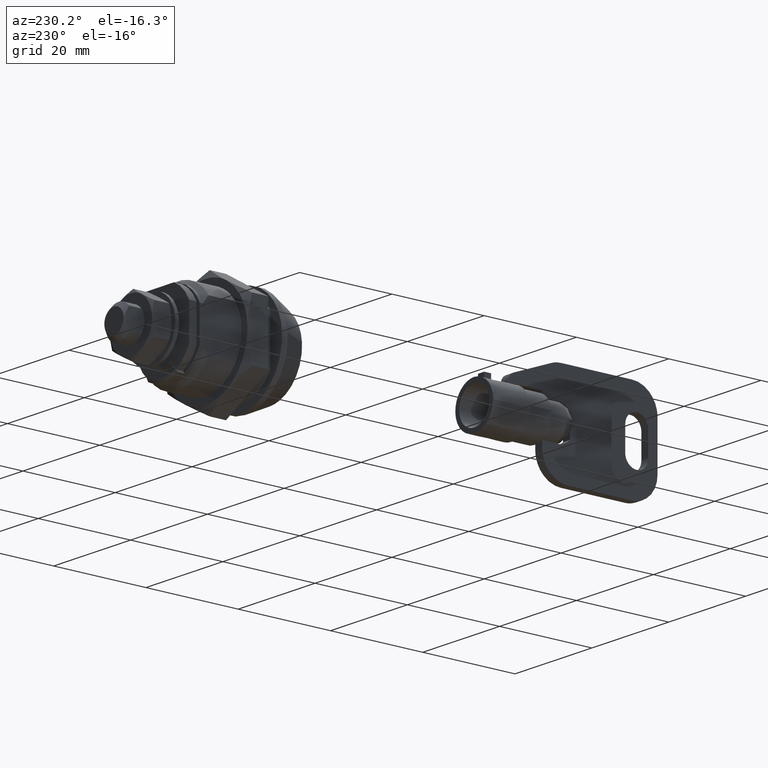
[diagram: clean part render]
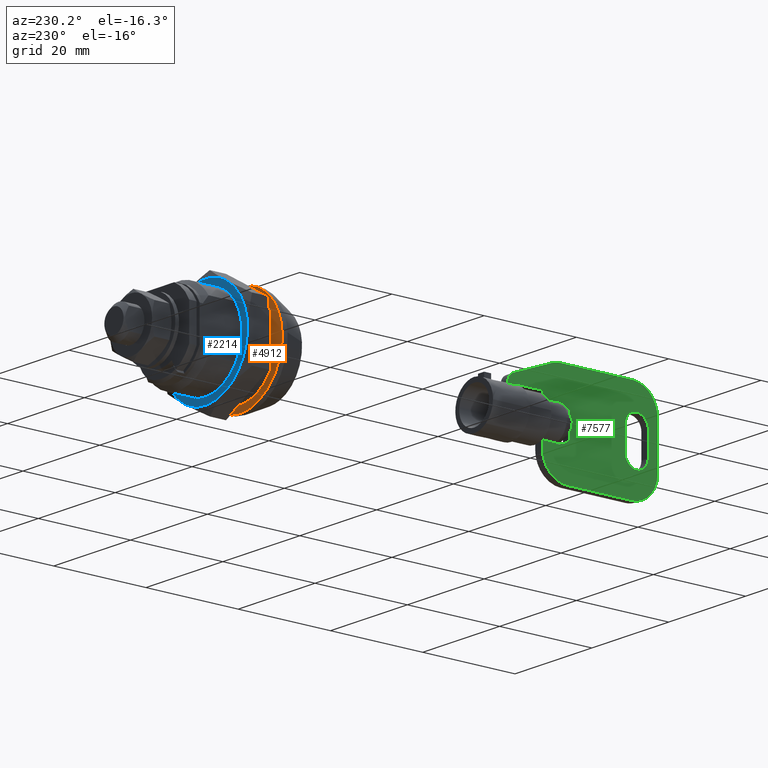
[diagram: same view with three faces highlighted in distinct colors, each labeled with its STEP entity id]
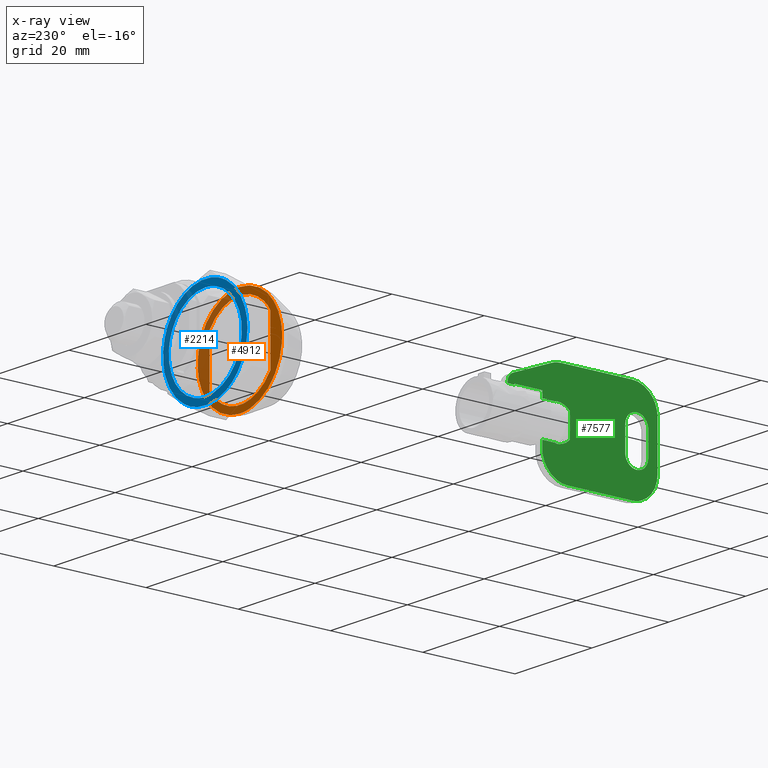
[diagram: x-ray of the same camera — body ghosted, the three highlighted faces saturated]
A machine part, auxiliary view with three faces highlighted in distinct colors.
The next image is the same camera in x-ray (body ghosted, the three faces saturated) — at least one of them is partly hidden behind the body in this view.
Their STEP definitions:

[orange] entity #4912 — the highlighted face is a freeform B-spline surface patch.
#2964=CARTESIAN_POINT('',(6.300003000000000,10.928161072150560,-1.255107796618596));
#2965=VERTEX_POINT('',#2964);
#2971=CARTESIAN_POINT('',(6.300003000000000,0.0,-11.0));
#2972=VERTEX_POINT('',#2971);
#2973=CARTESIAN_POINT('',(6.300002999999999,10.928161072150568,-1.255107796618596));
#2974=CARTESIAN_POINT('',(6.300003000000002,9.808952187476523,-11.0));
#2975=CARTESIAN_POINT('',(6.300003000000000,0.0,-11.0));
#2983=(BOUNDED_CURVE()B_SPLINE_CURVE(2,(#2973,#2974,#2975),.UNSPECIFIED.,.F.,.U.)B_SPLINE_CURVE_WITH_KNOTS((3,3),(0.269767770881984,0.500000000000000),.UNSPECIFIED.)CURVE()GEOMETRIC_REPRESENTATION_ITEM()RATIONAL_B_SPLINE_CURVE((0.957343706861125,0.730266165356112,1.0))REPRESENTATION_ITEM(''));
#2984=EDGE_CURVE('',#2965,#2972,#2983,.T.);
#2986=CARTESIAN_POINT('',(6.300003000000000,-10.979482782557540,-0.671533936240440));
#2987=VERTEX_POINT('',#2986);
#2988=CARTESIAN_POINT('',(6.300003000000000,0.0,-11.0));
#2989=CARTESIAN_POINT('',(6.300003000000001,-10.347766733400018,-11.0));
#2990=CARTESIAN_POINT('',(6.300003000000000,-10.979482782557534,-0.671533936240440));
#2998=(BOUNDED_CURVE()B_SPLINE_CURVE(2,(#2988,#2989,#2990),.UNSPECIFIED.,.F.,.U.)B_SPLINE_CURVE_WITH_KNOTS((3,3),(0.500000000000000,0.739332962199317),.UNSPECIFIED.)CURVE()GEOMETRIC_REPRESENTATION_ITEM()RATIONAL_B_SPLINE_CURVE((1.0,0.719603993333135,0.976072041581791))REPRESENTATION_ITEM(''));
#2999=EDGE_CURVE('',#2972,#2987,#2998,.T.);
#3094=CARTESIAN_POINT('',(6.300003000000000,0.0,11.0));
#3095=VERTEX_POINT('',#3094);
#3096=CARTESIAN_POINT('',(6.300003000000000,-10.979482782557534,-0.671533936240440));
#3097=CARTESIAN_POINT('',(6.300003000000000,-10.999999999999998,-0.336080397645296));
#3098=CARTESIAN_POINT('',(6.300003000000000,-11.0,0.0));
#3099=CARTESIAN_POINT('',(6.300003000000001,-11.0,11.0));
#3100=CARTESIAN_POINT('',(6.300003000000000,0.0,11.0));
#3108=(BOUNDED_CURVE()B_SPLINE_CURVE(2,(#3096,#3097,#3098,#3099,#3100),.UNSPECIFIED.,.F.,.U.)B_SPLINE_CURVE_WITH_KNOTS((3,2,3),(0.739332962199316,0.750000000000000,1.0),.UNSPECIFIED.)CURVE()GEOMETRIC_REPRESENTATION_ITEM()RATIONAL_B_SPLINE_CURVE((0.976072041581791,0.987502787853412,1.0,0.707106781186548,1.0))REPRESENTATION_ITEM(''));
#3109=EDGE_CURVE('',#2987,#3095,#3108,.T.);
#3111=CARTESIAN_POINT('',(6.300003000000000,0.0,11.0));
#3112=CARTESIAN_POINT('',(6.300003000000001,11.0,11.0));
#3113=CARTESIAN_POINT('',(6.300003000000000,11.0,0.0));
#3114=CARTESIAN_POINT('',(6.300003000000000,11.000000000000002,-0.629610074535282));
#3115=CARTESIAN_POINT('',(6.300003000000000,10.928161072150568,-1.255107796618596));
#3123=(BOUNDED_CURVE()B_SPLINE_CURVE(2,(#3111,#3112,#3113,#3114,#3115),.UNSPECIFIED.,.F.,.U.)B_SPLINE_CURVE_WITH_KNOTS((3,2,3),(0.0,0.250000000000000,0.269767770881984),.UNSPECIFIED.)CURVE()GEOMETRIC_REPRESENTATION_ITEM()RATIONAL_B_SPLINE_CURVE((1.0,0.707106781186548,1.0,0.976840615830435,0.957343706861125))REPRESENTATION_ITEM(''));
#3124=EDGE_CURVE('',#3095,#2965,#3123,.T.);
#4099=CARTESIAN_POINT('',(6.300003000000000,-7.900010284478889,5.276348785394170));
#4100=VERTEX_POINT('',#4099);
#4106=CARTESIAN_POINT('',(6.300003000000000,-7.900009452898900,-5.276348229989000));
#4107=VERTEX_POINT('',#4106);
#4108=CARTESIAN_POINT('',(6.300003000000000,-7.900009452898900,-5.276348229989000));
#4109=CARTESIAN_POINT('',(6.300003000000000,-7.900010284478889,5.276348785394170));
#4110=QUASI_UNIFORM_CURVE('',1,(#4108,#4109),.UNSPECIFIED.,.F.,.U.);
#4111=EDGE_CURVE('',#4107,#4100,#4110,.T.);
#4175=CARTESIAN_POINT('',(6.300003000000000,7.899994258074021,-5.276370980361171));
#4176=VERTEX_POINT('',#4175);
#4182=CARTESIAN_POINT('',(6.300003000000000,7.899994258074040,5.276370980361140));
#4183=VERTEX_POINT('',#4182);
#4184=CARTESIAN_POINT('',(6.300003000000000,7.899994258074040,5.276370980361140));
#4185=CARTESIAN_POINT('',(6.300003000000000,7.899994258074021,-5.276370980361171));
#4186=QUASI_UNIFORM_CURVE('',1,(#4184,#4185),.UNSPECIFIED.,.F.,.U.);
#4187=EDGE_CURVE('',#4183,#4176,#4186,.T.);
#4867=CARTESIAN_POINT('',(6.300003000000000,-12.098640500122739,12.098899957359730));
#4868=CARTESIAN_POINT('',(6.300003000000000,-12.098640500122739,-12.098900547445711));
#4869=CARTESIAN_POINT('',(6.300003000000000,12.098865126187039,12.098899957359730));
#4870=CARTESIAN_POINT('',(6.300003000000000,12.098865126187039,-12.098900547445711));
#4871=B_SPLINE_SURFACE_WITH_KNOTS('',1,1,((#4867,#4869),(#4868,#4870)),.UNSPECIFIED.,.F.,.F.,.U.,(2,2),(2,2),(0.0,24.197800504805439),(0.0,24.197505626309770),.UNSPECIFIED.);
#4872=ORIENTED_EDGE('',*,*,#3109,.F.);
#4873=ORIENTED_EDGE('',*,*,#2999,.F.);
#4874=ORIENTED_EDGE('',*,*,#2984,.F.);
#4875=ORIENTED_EDGE('',*,*,#3124,.F.);
#4876=EDGE_LOOP('',(#4872,#4873,#4874,#4875));
#4877=FACE_OUTER_BOUND('',#4876,.T.);
#4878=CARTESIAN_POINT('',(6.300003000000000,-7.900010284478889,5.276348785394170));
#4879=CARTESIAN_POINT('',(6.300003000000000,-5.079074403466395,9.499993587505214));
#4880=CARTESIAN_POINT('',(6.300003000000000,-0.000014094808638,9.500000722286440));
#4881=CARTESIAN_POINT('',(6.300003000000000,5.079046213849120,9.500007857067667));
#4882=CARTESIAN_POINT('',(6.300003000000000,7.899994258074040,5.276370980361140));
#4890=(BOUNDED_CURVE()B_SPLINE_CURVE(2,(#4878,#4879,#4880,#4881,#4882),.UNSPECIFIED.,.F.,.U.)B_SPLINE_CURVE_WITH_KNOTS((3,2,3),(0.0,0.500000000000000,1.0),.UNSPECIFIED.)CURVE()GEOMETRIC_REPRESENTATION_ITEM()RATIONAL_B_SPLINE_CURVE((1.0,0.881874785394597,1.0,0.881874785394597,1.0))REPRESENTATION_ITEM(''));
#4891=EDGE_CURVE('',#4100,#4183,#4890,.T.);
#4892=ORIENTED_EDGE('',*,*,#4891,.T.);
#4893=ORIENTED_EDGE('',*,*,#4187,.T.);
#4894=CARTESIAN_POINT('',(6.300003000000000,7.899994258074021,-5.276370980361171));
#4895=CARTESIAN_POINT('',(6.300003000000000,5.079046362319865,-9.500007757905339));
#4896=CARTESIAN_POINT('',(6.300003000000000,-0.000013679018671,-9.500000444583877));
#4897=CARTESIAN_POINT('',(6.300003000000000,-5.079073720357203,-9.499993131262418));
#4898=CARTESIAN_POINT('',(6.300003000000000,-7.900009452898900,-5.276348229989000));
#4906=(BOUNDED_CURVE()B_SPLINE_CURVE(2,(#4894,#4895,#4896,#4897,#4898),.UNSPECIFIED.,.F.,.U.)B_SPLINE_CURVE_WITH_KNOTS((3,2,3),(0.0,0.500000000000000,1.0),.UNSPECIFIED.)CURVE()GEOMETRIC_REPRESENTATION_ITEM()RATIONAL_B_SPLINE_CURVE((1.0,0.881874785394597,1.0,0.881874785394597,1.0))REPRESENTATION_ITEM(''));
#4907=EDGE_CURVE('',#4176,#4107,#4906,.T.);
#4908=ORIENTED_EDGE('',*,*,#4907,.T.);
#4909=ORIENTED_EDGE('',*,*,#4111,.T.);
#4910=EDGE_LOOP('',(#4892,#4893,#4908,#4909));
#4911=FACE_BOUND('',#4910,.T.);
#4912=ADVANCED_FACE('',(#4877,#4911),#4871,.T.);

[blue] entity #2214 — the highlighted face is a freeform B-spline surface patch.
#1607=CARTESIAN_POINT('',(15.800003000000050,9.470714670457465,-0.745361409506649));
#1608=VERTEX_POINT('',#1607);
#1614=CARTESIAN_POINT('',(15.800003000000050,0.0,9.500000000000000));
#1615=VERTEX_POINT('',#1614);
#1616=CARTESIAN_POINT('',(15.800003000000050,9.470714670457465,-0.745361409506649));
#1617=CARTESIAN_POINT('',(15.800003000000052,9.500000000000000,-0.373256016665408));
#1618=CARTESIAN_POINT('',(15.800003000000050,9.500000000000000,0.0));
#1619=CARTESIAN_POINT('',(15.800003000000050,9.500000000000000,9.500000000000000));
#1620=CARTESIAN_POINT('',(15.800003000000050,0.0,9.500000000000000));
#1628=(BOUNDED_CURVE()B_SPLINE_CURVE(2,(#1616,#1617,#1618,#1619,#1620),.UNSPECIFIED.,.F.,.U.)B_SPLINE_CURVE_WITH_KNOTS((3,2,3),(0.736331300629432,0.750000000000000,1.0),.UNSPECIFIED.)CURVE()GEOMETRIC_REPRESENTATION_ITEM()RATIONAL_B_SPLINE_CURVE((0.969723356164856,0.983986122577444,1.0,0.707106781186548,1.0))REPRESENTATION_ITEM(''));
#1629=EDGE_CURVE('',#1608,#1615,#1628,.T.);
#1631=CARTESIAN_POINT('',(15.800003000000050,-9.470714670457465,0.745361409506646));
#1632=VERTEX_POINT('',#1631);
#1633=CARTESIAN_POINT('',(15.800003000000050,0.0,9.500000000000000));
#1634=CARTESIAN_POINT('',(15.800003000000050,-8.781709670581606,9.500000000000000));
#1635=CARTESIAN_POINT('',(15.800003000000048,-9.470714670457465,0.745361409506646));
#1643=(BOUNDED_CURVE()B_SPLINE_CURVE(2,(#1633,#1634,#1635),.UNSPECIFIED.,.F.,.U.)B_SPLINE_CURVE_WITH_KNOTS((3,3),(0.0,0.236331300629432),.UNSPECIFIED.)CURVE()GEOMETRIC_REPRESENTATION_ITEM()RATIONAL_B_SPLINE_CURVE((1.0,0.723120658609104,0.969723356164856))REPRESENTATION_ITEM(''));
#1644=EDGE_CURVE('',#1615,#1632,#1643,.T.);
#1690=CARTESIAN_POINT('',(15.800003000000050,0.0,-9.500000000000000));
#1691=VERTEX_POINT('',#1690);
#1692=CARTESIAN_POINT('',(15.800003000000046,-9.470714670457465,0.745361409506646));
#1693=CARTESIAN_POINT('',(15.800003000000050,-9.500000000000000,0.373256016665406));
#1694=CARTESIAN_POINT('',(15.800003000000050,-9.500000000000000,0.0));
#1695=CARTESIAN_POINT('',(15.800003000000050,-9.500000000000000,-9.500000000000000));
#1696=CARTESIAN_POINT('',(15.800003000000050,0.0,-9.500000000000000));
#1704=(BOUNDED_CURVE()B_SPLINE_CURVE(2,(#1692,#1693,#1694,#1695,#1696),.UNSPECIFIED.,.F.,.U.)B_SPLINE_CURVE_WITH_KNOTS((3,2,3),(0.236331300629432,0.250000000000000,0.500000000000000),.UNSPECIFIED.)CURVE()GEOMETRIC_REPRESENTATION_ITEM()RATIONAL_B_SPLINE_CURVE((0.969723356164856,0.983986122577444,1.0,0.707106781186548,1.0))REPRESENTATION_ITEM(''));
#1705=EDGE_CURVE('',#1632,#1691,#1704,.T.);
#1707=CARTESIAN_POINT('',(15.800003000000050,0.0,-9.500000000000000));
#1708=CARTESIAN_POINT('',(15.800003000000050,8.781709670581661,-9.500000000000000));
#1709=CARTESIAN_POINT('',(15.800003000000050,9.470714670457465,-0.745361409506649));
#1717=(BOUNDED_CURVE()B_SPLINE_CURVE(2,(#1707,#1708,#1709),.UNSPECIFIED.,.F.,.U.)B_SPLINE_CURVE_WITH_KNOTS((3,3),(0.500000000000000,0.736331300629433),.UNSPECIFIED.)CURVE()GEOMETRIC_REPRESENTATION_ITEM()RATIONAL_B_SPLINE_CURVE((1.0,0.723120658609102,0.969723356164858))REPRESENTATION_ITEM(''));
#1718=EDGE_CURVE('',#1691,#1608,#1717,.T.);
#1751=CARTESIAN_POINT('',(15.800003000000100,5.499994829120610,9.526282427035561));
#1752=VERTEX_POINT('',#1751);
#1768=CARTESIAN_POINT('',(15.800003000000100,11.0,0.0));
#1769=VERTEX_POINT('',#1768);
#1770=CARTESIAN_POINT('',(15.800003000000100,5.499994829120610,9.526282427035561));
#1771=CARTESIAN_POINT('',(15.800003000000098,11.0,6.350856941630693));
#1772=CARTESIAN_POINT('',(15.800003000000100,11.0,0.0));
#1780=(BOUNDED_CURVE()B_SPLINE_CURVE(2,(#1770,#1771,#1772),.UNSPECIFIED.,.F.,.U.)CURVE()GEOMETRIC_REPRESENTATION_ITEM()QUASI_UNIFORM_CURVE()RATIONAL_B_SPLINE_CURVE((1.0,0.866025268084037,1.0))REPRESENTATION_ITEM(''));
#1781=EDGE_CURVE('',#1752,#1769,#1780,.T.);
#1833=CARTESIAN_POINT('',(15.800003000000100,5.513151729109220,-9.518674173004349));
#1834=VERTEX_POINT('',#1833);
#1835=CARTESIAN_POINT('',(15.800003000000100,11.0,0.0));
#1836=CARTESIAN_POINT('',(15.800003000000107,10.999999999999998,-6.340728748859865));
#1837=CARTESIAN_POINT('',(15.800003000000100,5.513151729109217,-9.518674173004348));
#1845=(BOUNDED_CURVE()B_SPLINE_CURVE(2,(#1835,#1836,#1837),.UNSPECIFIED.,.F.,.U.)CURVE()GEOMETRIC_REPRESENTATION_ITEM()QUASI_UNIFORM_CURVE()RATIONAL_B_SPLINE_CURVE((1.0,0.866370478414749,1.0))REPRESENTATION_ITEM(''));
#1846=EDGE_CURVE('',#1769,#1834,#1845,.T.);
#1876=CARTESIAN_POINT('',(15.800003000000100,5.486851247642080,-9.533858787828180));
#1877=VERTEX_POINT('',#1876);
#1878=CARTESIAN_POINT('',(15.800003000000100,-5.500000050550921,-9.526279470814409));
#1879=VERTEX_POINT('',#1878);
#1880=CARTESIAN_POINT('',(15.800003000000100,5.486851247642076,-9.533858787828176));
#1881=CARTESIAN_POINT('',(15.800003000000101,-0.008758877429218,-12.696649001356283));
#1882=CARTESIAN_POINT('',(15.800003000000100,-5.500000050550921,-9.526279470814409));
#1890=(BOUNDED_CURVE()B_SPLINE_CURVE(2,(#1880,#1881,#1882),.UNSPECIFIED.,.F.,.U.)CURVE()GEOMETRIC_REPRESENTATION_ITEM()QUASI_UNIFORM_CURVE()RATIONAL_B_SPLINE_CURVE((1.0,0.866370125011569,1.0))REPRESENTATION_ITEM(''));
#1891=EDGE_CURVE('',#1877,#1879,#1890,.T.);
#1942=CARTESIAN_POINT('',(15.800003000000100,-5.500000050550921,-9.526279470814409));
#1943=CARTESIAN_POINT('',(15.800003000000096,-15.026276854234830,-4.026280901760840));
#1944=CARTESIAN_POINT('',(15.800003000000100,-9.526280927036149,5.499997427198243));
#1945=CARTESIAN_POINT('',(15.800003000000096,-4.026284999837469,15.026275756157318));
#1946=CARTESIAN_POINT('',(15.800003000000100,5.499994829120609,9.526282427035563));
#1954=(BOUNDED_CURVE()B_SPLINE_CURVE(2,(#1942,#1943,#1944,#1945,#1946),.UNSPECIFIED.,.F.,.U.)B_SPLINE_CURVE_WITH_KNOTS((3,2,3),(0.0,0.500000000000000,1.0),.UNSPECIFIED.)CURVE()GEOMETRIC_REPRESENTATION_ITEM()RATIONAL_B_SPLINE_CURVE((1.0,0.707106877610223,1.0,0.707106877610223,1.0))REPRESENTATION_ITEM(''));
#1955=EDGE_CURVE('',#1879,#1752,#1954,.T.);
#2094=CARTESIAN_POINT('',(15.800003000000100,5.513151729109220,-9.518674173004349));
#2095=CARTESIAN_POINT('',(15.800003000000100,5.486851247642080,-9.533858787828180));
#2096=QUASI_UNIFORM_CURVE('',1,(#2094,#2095),.UNSPECIFIED.,.F.,.U.);
#2097=EDGE_CURVE('',#1834,#1877,#2096,.T.);
#2196=CARTESIAN_POINT('',(15.800003000000100,-12.098899984276450,12.098899995825670));
#2197=CARTESIAN_POINT('',(15.800003000000100,12.098900548349670,12.098899995825670));
#2198=CARTESIAN_POINT('',(15.800003000000100,-12.098899984276450,-12.098897818757219));
#2199=CARTESIAN_POINT('',(15.800003000000100,12.098900548349670,-12.098897818757219));
#2200=B_SPLINE_SURFACE_WITH_KNOTS('',1,1,((#2196,#2198),(#2197,#2199)),.UNSPECIFIED.,.F.,.F.,.U.,(2,2),(2,2),(0.0,24.197800532626118),(0.0,24.197797814582891),.UNSPECIFIED.);
#2201=ORIENTED_EDGE('',*,*,#1781,.F.);
#2202=ORIENTED_EDGE('',*,*,#1955,.F.);
#2203=ORIENTED_EDGE('',*,*,#1891,.F.);
#2204=ORIENTED_EDGE('',*,*,#2097,.F.);
#2205=ORIENTED_EDGE('',*,*,#1846,.F.);
#2206=EDGE_LOOP('',(#2201,#2202,#2203,#2204,#2205));
#2207=FACE_OUTER_BOUND('',#2206,.T.);
#2208=ORIENTED_EDGE('',*,*,#1718,.F.);
#2209=ORIENTED_EDGE('',*,*,#1705,.F.);
#2210=ORIENTED_EDGE('',*,*,#1644,.F.);
#2211=ORIENTED_EDGE('',*,*,#1629,.F.);
#2212=EDGE_LOOP('',(#2208,#2209,#2210,#2211));
#2213=FACE_BOUND('',#2212,.T.);
#2214=ADVANCED_FACE('',(#2207,#2213),#2200,.F.);

[green] entity #7577 — the highlighted face is a freeform B-spline surface patch.
#5805=CARTESIAN_POINT('',(-58.490193000000012,0.900000000000000,-3.588871688985175));
#5806=VERTEX_POINT('',#5805);
#5820=CARTESIAN_POINT('',(-61.487812432673103,0.900000000000000,-3.588871688985175));
#5821=VERTEX_POINT('',#5820);
#5822=CARTESIAN_POINT('',(-61.487812432673103,0.900000000000000,-3.588871688985175));
#5823=CARTESIAN_POINT('',(-58.490193000000012,0.900000000000000,-3.588871688985175));
#5824=QUASI_UNIFORM_CURVE('',1,(#5822,#5823),.UNSPECIFIED.,.F.,.U.);
#5825=EDGE_CURVE('',#5821,#5806,#5824,.T.);
#5844=CARTESIAN_POINT('',(-61.487812432673103,0.900000000000000,3.588871688985175));
#5845=VERTEX_POINT('',#5844);
#5859=CARTESIAN_POINT('',(-58.490193000000012,0.900000000000000,3.588871688985175));
#5860=VERTEX_POINT('',#5859);
#5861=CARTESIAN_POINT('',(-58.490193000000012,0.900000000000000,3.588871688985175));
#5862=CARTESIAN_POINT('',(-61.487812432673103,0.900000000000000,3.588871688985175));
#5863=QUASI_UNIFORM_CURVE('',1,(#5861,#5862),.UNSPECIFIED.,.F.,.U.);
#5864=EDGE_CURVE('',#5860,#5845,#5863,.T.);
#6026=CARTESIAN_POINT('',(-52.490192999999998,0.900000000000000,4.816637831516920));
#6027=VERTEX_POINT('',#6026);
#6041=CARTESIAN_POINT('',(-50.990193000000012,0.900000000000000,4.816637831516920));
#6042=VERTEX_POINT('',#6041);
#6043=CARTESIAN_POINT('',(-50.990193000000012,0.900000000000000,4.816637831516920));
#6044=CARTESIAN_POINT('',(-52.490192999999998,0.900000000000000,4.816637831516920));
#6045=QUASI_UNIFORM_CURVE('',1,(#6043,#6044),.UNSPECIFIED.,.F.,.U.);
#6046=EDGE_CURVE('',#6042,#6027,#6045,.T.);
#6282=CARTESIAN_POINT('',(-61.490199608887401,0.900000000000000,-3.588702282998970));
#6283=VERTEX_POINT('',#6282);
#6284=CARTESIAN_POINT('',(-61.490199608887423,0.900000000000000,-3.588702282999030));
#6285=CARTESIAN_POINT('',(-61.489403980217247,0.900000000000000,-3.588759073560181));
#6286=CARTESIAN_POINT('',(-61.488608254140821,0.900000000000000,-3.588815540332797));
#6287=CARTESIAN_POINT('',(-61.487812432673103,0.900000000000000,-3.588871688985175));
#6288=B_SPLINE_CURVE_WITH_KNOTS('',3,(#6284,#6285,#6286,#6287),.UNSPECIFIED.,.F.,.U.,(4,4),(0.0,0.000217530826527),.UNSPECIFIED.);
#6289=EDGE_CURVE('',#6283,#5821,#6288,.T.);
#6430=CARTESIAN_POINT('',(-61.490192999999998,0.900000000000000,3.588702754722065));
#6431=VERTEX_POINT('',#6430);
#6445=CARTESIAN_POINT('',(-61.487812432673103,0.900000000000000,3.588871688985175));
#6446=CARTESIAN_POINT('',(-61.488605935360418,0.900000000000000,3.588815710378918));
#6447=CARTESIAN_POINT('',(-61.489399457491018,0.900000000000000,3.588759394561059));
#6448=CARTESIAN_POINT('',(-61.490192999999998,0.900000000000000,3.588702754722082));
#6449=B_SPLINE_CURVE_WITH_KNOTS('',3,(#6445,#6446,#6447,#6448),.UNSPECIFIED.,.F.,.U.,(4,4),(0.999783444907066,1.0),.UNSPECIFIED.);
#6450=EDGE_CURVE('',#5845,#6431,#6449,.T.);
#6594=CARTESIAN_POINT('',(-76.490193000000005,0.900000000000012,-2.500000000000000));
#6595=VERTEX_POINT('',#6594);
#6601=CARTESIAN_POINT('',(-81.490193000000005,0.900000000000012,-2.500000000000000));
#6602=VERTEX_POINT('',#6601);
#6603=CARTESIAN_POINT('',(-81.490193000000005,0.900000000000012,-2.500000000000000));
#6604=CARTESIAN_POINT('',(-81.490193000000005,0.900000000000012,-5.000000000000001));
#6605=CARTESIAN_POINT('',(-78.990193000000005,0.900000000000012,-5.0));
#6606=CARTESIAN_POINT('',(-76.490192999999991,0.900000000000012,-5.000000000000001));
#6607=CARTESIAN_POINT('',(-76.490193000000005,0.900000000000012,-2.500000000000000));
#6615=(BOUNDED_CURVE()B_SPLINE_CURVE(2,(#6603,#6604,#6605,#6606,#6607),.UNSPECIFIED.,.F.,.U.)B_SPLINE_CURVE_WITH_KNOTS((3,2,3),(0.0,0.500000000000000,1.0),.UNSPECIFIED.)CURVE()GEOMETRIC_REPRESENTATION_ITEM()RATIONAL_B_SPLINE_CURVE((1.0,0.707106781186548,1.0,0.707106781186548,1.0))REPRESENTATION_ITEM(''));
#6616=EDGE_CURVE('',#6602,#6595,#6615,.T.);
#6638=CARTESIAN_POINT('',(-76.490193000000005,0.900000000000012,2.500000000000000));
#6639=VERTEX_POINT('',#6638);
#6645=CARTESIAN_POINT('',(-76.490193000000005,0.900000000000012,2.500000000000000));
#6646=CARTESIAN_POINT('',(-76.490193000000005,0.900000000000012,-2.500000000000000));
#6647=QUASI_UNIFORM_CURVE('',1,(#6645,#6646),.UNSPECIFIED.,.F.,.U.);
#6648=EDGE_CURVE('',#6639,#6595,#6647,.T.);
#6689=CARTESIAN_POINT('',(-81.490193000000005,0.900000000000012,2.500000000000000));
#6690=VERTEX_POINT('',#6689);
#6696=CARTESIAN_POINT('',(-76.490193000000005,0.900000000000012,2.500000000000000));
#6697=CARTESIAN_POINT('',(-76.490192999999991,0.900000000000012,5.000000000000001));
#6698=CARTESIAN_POINT('',(-78.990193000000005,0.900000000000012,5.0));
#6699=CARTESIAN_POINT('',(-81.490193000000005,0.900000000000012,5.000000000000001));
#6700=CARTESIAN_POINT('',(-81.490193000000005,0.900000000000012,2.500000000000000));
#6708=(BOUNDED_CURVE()B_SPLINE_CURVE(2,(#6696,#6697,#6698,#6699,#6700),.UNSPECIFIED.,.F.,.U.)B_SPLINE_CURVE_WITH_KNOTS((3,2,3),(0.0,0.500000000000000,1.0),.UNSPECIFIED.)CURVE()GEOMETRIC_REPRESENTATION_ITEM()RATIONAL_B_SPLINE_CURVE((1.0,0.707106781186548,1.0,0.707106781186548,1.0))REPRESENTATION_ITEM(''));
#6709=EDGE_CURVE('',#6639,#6690,#6708,.T.);
#6726=CARTESIAN_POINT('',(-81.490193000000005,0.900000000000012,-2.500000000000000));
#6727=CARTESIAN_POINT('',(-81.490193000000005,0.900000000000012,2.500000000000000));
#6728=QUASI_UNIFORM_CURVE('',1,(#6726,#6727),.UNSPECIFIED.,.F.,.U.);
#6729=EDGE_CURVE('',#6602,#6690,#6728,.T.);
#6749=CARTESIAN_POINT('',(-62.526610622687897,0.900000000000000,10.500000000000000));
#6750=VERTEX_POINT('',#6749);
#6751=CARTESIAN_POINT('',(-60.526312026143103,0.900000000000000,10.123358812796660));
#6752=VERTEX_POINT('',#6751);
#6753=CARTESIAN_POINT('',(-62.526610622687897,0.900000000000012,10.500000000000000));
#6754=CARTESIAN_POINT('',(-61.491001972461007,0.900000000000012,10.500000000000000));
#6755=CARTESIAN_POINT('',(-60.526312026143117,0.900000000000012,10.123358812796640));
#6763=(BOUNDED_CURVE()B_SPLINE_CURVE(2,(#6753,#6754,#6755),.UNSPECIFIED.,.F.,.U.)CURVE()GEOMETRIC_REPRESENTATION_ITEM()QUASI_UNIFORM_CURVE()RATIONAL_B_SPLINE_CURVE((1.0,0.982730833988851,1.0))REPRESENTATION_ITEM(''));
#6764=EDGE_CURVE('',#6750,#6752,#6763,.T.);
#6810=CARTESIAN_POINT('',(-52.262811692165499,0.900000000000000,6.897063578639590));
#6811=VERTEX_POINT('',#6810);
#6812=CARTESIAN_POINT('',(-50.990193000000012,0.900000000000000,5.034024010349899));
#6813=VERTEX_POINT('',#6812);
#6814=CARTESIAN_POINT('',(-52.262811692165513,0.900000000000012,6.897063578639575));
#6815=CARTESIAN_POINT('',(-50.990192999999998,0.900000000000012,6.400198635759286));
#6816=CARTESIAN_POINT('',(-50.990192999999998,0.900000000000012,5.034024010349899));
#6824=(BOUNDED_CURVE()B_SPLINE_CURVE(2,(#6814,#6815,#6816),.UNSPECIFIED.,.F.,.U.)CURVE()GEOMETRIC_REPRESENTATION_ITEM()QUASI_UNIFORM_CURVE()RATIONAL_B_SPLINE_CURVE((1.0,0.825739260879985,1.0))REPRESENTATION_ITEM(''));
#6825=EDGE_CURVE('',#6811,#6813,#6824,.T.);
#6871=CARTESIAN_POINT('',(-58.490193000000012,0.900000000000012,5.0));
#6872=VERTEX_POINT('',#6871);
#6878=CARTESIAN_POINT('',(-52.490192999999998,0.900000000000012,5.0));
#6879=VERTEX_POINT('',#6878);
#6880=CARTESIAN_POINT('',(-58.490193000000012,0.900000000000012,5.0));
#6881=CARTESIAN_POINT('',(-52.490192999999998,0.900000000000012,5.0));
#6882=QUASI_UNIFORM_CURVE('',1,(#6880,#6881),.UNSPECIFIED.,.F.,.U.);
#6883=EDGE_CURVE('',#6872,#6879,#6882,.T.);
#6907=CARTESIAN_POINT('',(-64.490193000000005,0.900000000000012,-2.500520151848770));
#6908=VERTEX_POINT('',#6907);
#6914=CARTESIAN_POINT('',(-64.490193000000005,0.900000000000012,2.499520151848455));
#6915=VERTEX_POINT('',#6914);
#6916=CARTESIAN_POINT('',(-64.490193000000005,0.900000000000012,-2.500520151848770));
#6917=CARTESIAN_POINT('',(-64.490193000000005,0.900000000000012,2.499520151848455));
#6918=QUASI_UNIFORM_CURVE('',1,(#6916,#6917),.UNSPECIFIED.,.F.,.U.);
#6919=EDGE_CURVE('',#6908,#6915,#6918,.T.);
#6958=CARTESIAN_POINT('',(-61.490199608887401,0.900000000000012,-3.700514335641915));
#6959=VERTEX_POINT('',#6958);
#6965=CARTESIAN_POINT('',(-64.490193000000005,0.900000000000012,-2.500520151848772));
#6966=CARTESIAN_POINT('',(-63.255093754734816,0.900000000000012,-3.762762620372036));
#6967=CARTESIAN_POINT('',(-61.490199608887401,0.900000000000012,-3.700514335641909));
#6975=(BOUNDED_CURVE()B_SPLINE_CURVE(2,(#6965,#6966,#6967),.UNSPECIFIED.,.F.,.U.)CURVE()GEOMETRIC_REPRESENTATION_ITEM()QUASI_UNIFORM_CURVE()RATIONAL_B_SPLINE_CURVE((1.0,0.914809181026153,1.0))REPRESENTATION_ITEM(''));
#6976=EDGE_CURVE('',#6908,#6959,#6975,.T.);
#7013=CARTESIAN_POINT('',(-63.990192999999998,0.900000000000012,-10.500000000000201));
#7014=VERTEX_POINT('',#7013);
#7020=CARTESIAN_POINT('',(-58.490193000000012,0.900000000000012,-5.0));
#7021=VERTEX_POINT('',#7020);
#7022=CARTESIAN_POINT('',(-63.990192999999998,0.900000000000012,-10.500000000000000));
#7023=CARTESIAN_POINT('',(-58.490193000000005,0.900000000000012,-10.499999999999998));
#7024=CARTESIAN_POINT('',(-58.490193000000012,0.900000000000012,-5.0));
#7032=(BOUNDED_CURVE()B_SPLINE_CURVE(2,(#7022,#7023,#7024),.UNSPECIFIED.,.F.,.U.)CURVE()GEOMETRIC_REPRESENTATION_ITEM()QUASI_UNIFORM_CURVE()RATIONAL_B_SPLINE_CURVE((1.0,0.707106781186548,1.0))REPRESENTATION_ITEM(''));
#7033=EDGE_CURVE('',#7014,#7021,#7032,.T.);
#7055=CARTESIAN_POINT('',(-77.990193000000005,0.900000000000012,-10.500000000000000));
#7056=VERTEX_POINT('',#7055);
#7062=CARTESIAN_POINT('',(-77.990193000000005,0.900000000000012,-10.500000000000000));
#7063=CARTESIAN_POINT('',(-63.990192999999998,0.900000000000012,-10.500000000000201));
#7064=QUASI_UNIFORM_CURVE('',1,(#7062,#7063),.UNSPECIFIED.,.F.,.U.);
#7065=EDGE_CURVE('',#7056,#7014,#7064,.T.);
#7100=CARTESIAN_POINT('',(-83.490193000000005,0.900000000000012,-5.0));
#7101=VERTEX_POINT('',#7100);
#7107=CARTESIAN_POINT('',(-83.490193000000005,0.900000000000012,-5.0));
#7108=CARTESIAN_POINT('',(-83.490193000000005,0.900000000000012,-10.499999999999998));
#7109=CARTESIAN_POINT('',(-77.990193000000005,0.900000000000012,-10.500000000000000));
#7117=(BOUNDED_CURVE()B_SPLINE_CURVE(2,(#7107,#7108,#7109),.UNSPECIFIED.,.F.,.U.)CURVE()GEOMETRIC_REPRESENTATION_ITEM()QUASI_UNIFORM_CURVE()RATIONAL_B_SPLINE_CURVE((1.0,0.707106781186548,1.0))REPRESENTATION_ITEM(''));
#7118=EDGE_CURVE('',#7101,#7056,#7117,.T.);
#7136=CARTESIAN_POINT('',(-83.490193000000005,0.900000000000012,5.0));
#7137=VERTEX_POINT('',#7136);
#7143=CARTESIAN_POINT('',(-83.490193000000005,0.900000000000012,5.0));
#7144=CARTESIAN_POINT('',(-83.490193000000005,0.900000000000012,-5.0));
#7145=QUASI_UNIFORM_CURVE('',1,(#7143,#7144),.UNSPECIFIED.,.F.,.U.);
#7146=EDGE_CURVE('',#7137,#7101,#7145,.T.);
#7181=CARTESIAN_POINT('',(-77.990193000000005,0.900000000000012,10.500000000000000));
#7182=VERTEX_POINT('',#7181);
#7188=CARTESIAN_POINT('',(-77.990193000000005,0.900000000000012,10.500000000000000));
#7189=CARTESIAN_POINT('',(-83.490193000000005,0.900000000000012,10.499999999999998));
#7190=CARTESIAN_POINT('',(-83.490193000000005,0.900000000000012,5.0));
#7198=(BOUNDED_CURVE()B_SPLINE_CURVE(2,(#7188,#7189,#7190),.UNSPECIFIED.,.F.,.U.)CURVE()GEOMETRIC_REPRESENTATION_ITEM()QUASI_UNIFORM_CURVE()RATIONAL_B_SPLINE_CURVE((1.0,0.707106781186548,1.0))REPRESENTATION_ITEM(''));
#7199=EDGE_CURVE('',#7182,#7137,#7198,.T.);
#7216=CARTESIAN_POINT('',(-62.526610622687897,0.900000000000000,10.500000000000000));
#7217=CARTESIAN_POINT('',(-77.990193000000005,0.900000000000012,10.500000000000000));
#7218=QUASI_UNIFORM_CURVE('',1,(#7216,#7217),.UNSPECIFIED.,.F.,.U.);
#7219=EDGE_CURVE('',#6750,#7182,#7218,.T.);
#7230=CARTESIAN_POINT('',(-52.262811692165499,0.900000000000000,6.897063578639590));
#7231=CARTESIAN_POINT('',(-60.526312026143103,0.900000000000000,10.123358812796660));
#7232=QUASI_UNIFORM_CURVE('',1,(#7230,#7231),.UNSPECIFIED.,.F.,.U.);
#7233=EDGE_CURVE('',#6811,#6752,#7232,.T.);
#7272=CARTESIAN_POINT('',(-61.490192999999998,0.900000000000012,3.699514102538915));
#7273=VERTEX_POINT('',#7272);
#7279=CARTESIAN_POINT('',(-61.490192999999998,0.900000000000012,3.699514102538915));
#7280=CARTESIAN_POINT('',(-61.490192999999998,0.900000000000000,3.588702754722065));
#7281=QUASI_UNIFORM_CURVE('',1,(#7279,#7280),.UNSPECIFIED.,.F.,.U.);
#7282=EDGE_CURVE('',#7273,#6431,#7281,.T.);
#7319=CARTESIAN_POINT('',(-61.490192999999998,0.900000000000012,3.699514102538912));
#7320=CARTESIAN_POINT('',(-63.255090991481552,0.900000000000012,3.761765444351775));
#7321=CARTESIAN_POINT('',(-64.490193000000005,0.900000000000012,2.499520151848459));
#7329=(BOUNDED_CURVE()B_SPLINE_CURVE(2,(#7319,#7320,#7321),.UNSPECIFIED.,.F.,.U.)CURVE()GEOMETRIC_REPRESENTATION_ITEM()QUASI_UNIFORM_CURVE()RATIONAL_B_SPLINE_CURVE((1.0,0.914808847163458,1.0))REPRESENTATION_ITEM(''));
#7330=EDGE_CURVE('',#7273,#6915,#7329,.T.);
#7341=CARTESIAN_POINT('',(-61.490199608887401,0.900000000000000,-3.588702282998970));
#7342=CARTESIAN_POINT('',(-61.490199608887401,0.900000000000012,-3.700514335641915));
#7343=QUASI_UNIFORM_CURVE('',1,(#7341,#7342),.UNSPECIFIED.,.F.,.U.);
#7344=EDGE_CURVE('',#6283,#6959,#7343,.T.);
#7361=CARTESIAN_POINT('',(-58.490193000000012,0.900000000000000,3.588871688985175));
#7362=CARTESIAN_POINT('',(-58.490193000000012,0.900000000000012,5.0));
#7363=QUASI_UNIFORM_CURVE('',1,(#7361,#7362),.UNSPECIFIED.,.F.,.U.);
#7364=EDGE_CURVE('',#5860,#6872,#7363,.T.);
#7387=CARTESIAN_POINT('',(-58.490193000000012,0.900000000000012,-5.0));
#7388=CARTESIAN_POINT('',(-58.490193000000012,0.900000000000000,-3.588871688985175));
#7389=QUASI_UNIFORM_CURVE('',1,(#7387,#7388),.UNSPECIFIED.,.F.,.U.);
#7390=EDGE_CURVE('',#7021,#5806,#7389,.T.);
#7400=CARTESIAN_POINT('',(-50.990193000000012,0.900000000000000,4.816637831516920));
#7401=CARTESIAN_POINT('',(-50.990193000000012,0.900000000000000,5.034024010349899));
#7402=QUASI_UNIFORM_CURVE('',1,(#7400,#7401),.UNSPECIFIED.,.F.,.U.);
#7403=EDGE_CURVE('',#6042,#6813,#7402,.T.);
#7470=CARTESIAN_POINT('',(-52.490192999999998,0.900000000000012,5.0));
#7471=CARTESIAN_POINT('',(-52.490192999999998,0.900000000000000,4.816637831516920));
#7472=QUASI_UNIFORM_CURVE('',1,(#7470,#7471),.UNSPECIFIED.,.F.,.U.);
#7473=EDGE_CURVE('',#6879,#6027,#7472,.T.);
#7540=CARTESIAN_POINT('',(-85.113571292962916,0.900000000000000,-11.548949959298140));
#7541=CARTESIAN_POINT('',(-49.366817031618240,0.900000000000000,-11.548949959298140));
#7542=CARTESIAN_POINT('',(-85.113571292962916,0.900000000000000,11.548950522561830));
#7543=CARTESIAN_POINT('',(-49.366817031618240,0.900000000000000,11.548950522561830));
#7544=B_SPLINE_SURFACE_WITH_KNOTS('',1,1,((#7540,#7542),(#7541,#7543)),.UNSPECIFIED.,.F.,.F.,.U.,(2,2),(2,2),(0.0,35.746754261344677),(0.0,23.097900481859970),.UNSPECIFIED.);
#7545=ORIENTED_EDGE('',*,*,#7219,.F.);
#7546=ORIENTED_EDGE('',*,*,#6764,.T.);
#7547=ORIENTED_EDGE('',*,*,#7233,.F.);
#7548=ORIENTED_EDGE('',*,*,#6825,.T.);
#7549=ORIENTED_EDGE('',*,*,#7403,.F.);
#7550=ORIENTED_EDGE('',*,*,#6046,.T.);
#7551=ORIENTED_EDGE('',*,*,#7473,.F.);
#7552=ORIENTED_EDGE('',*,*,#6883,.F.);
#7553=ORIENTED_EDGE('',*,*,#7364,.F.);
#7554=ORIENTED_EDGE('',*,*,#5864,.T.);
#7555=ORIENTED_EDGE('',*,*,#6450,.T.);
#7556=ORIENTED_EDGE('',*,*,#7282,.F.);
#7557=ORIENTED_EDGE('',*,*,#7330,.T.);
#7558=ORIENTED_EDGE('',*,*,#6919,.F.);
#7559=ORIENTED_EDGE('',*,*,#6976,.T.);
#7560=ORIENTED_EDGE('',*,*,#7344,.F.);
#7561=ORIENTED_EDGE('',*,*,#6289,.T.);
#7562=ORIENTED_EDGE('',*,*,#5825,.T.);
#7563=ORIENTED_EDGE('',*,*,#7390,.F.);
#7564=ORIENTED_EDGE('',*,*,#7033,.F.);
#7565=ORIENTED_EDGE('',*,*,#7065,.F.);
#7566=ORIENTED_EDGE('',*,*,#7118,.F.);
#7567=ORIENTED_EDGE('',*,*,#7146,.F.);
#7568=ORIENTED_EDGE('',*,*,#7199,.F.);
#7569=EDGE_LOOP('',(#7545,#7546,#7547,#7548,#7549,#7550,#7551,#7552,#7553,#7554,#7555,#7556,#7557,#7558,#7559,#7560,#7561,#7562,#7563,#7564,#7565,#7566,#7567,#7568));
#7570=FACE_OUTER_BOUND('',#7569,.T.);
#7571=ORIENTED_EDGE('',*,*,#6729,.F.);
#7572=ORIENTED_EDGE('',*,*,#6616,.T.);
#7573=ORIENTED_EDGE('',*,*,#6648,.F.);
#7574=ORIENTED_EDGE('',*,*,#6709,.T.);
#7575=EDGE_LOOP('',(#7571,#7572,#7573,#7574));
#7576=FACE_BOUND('',#7575,.T.);
#7577=ADVANCED_FACE('',(#7570,#7576),#7544,.F.);